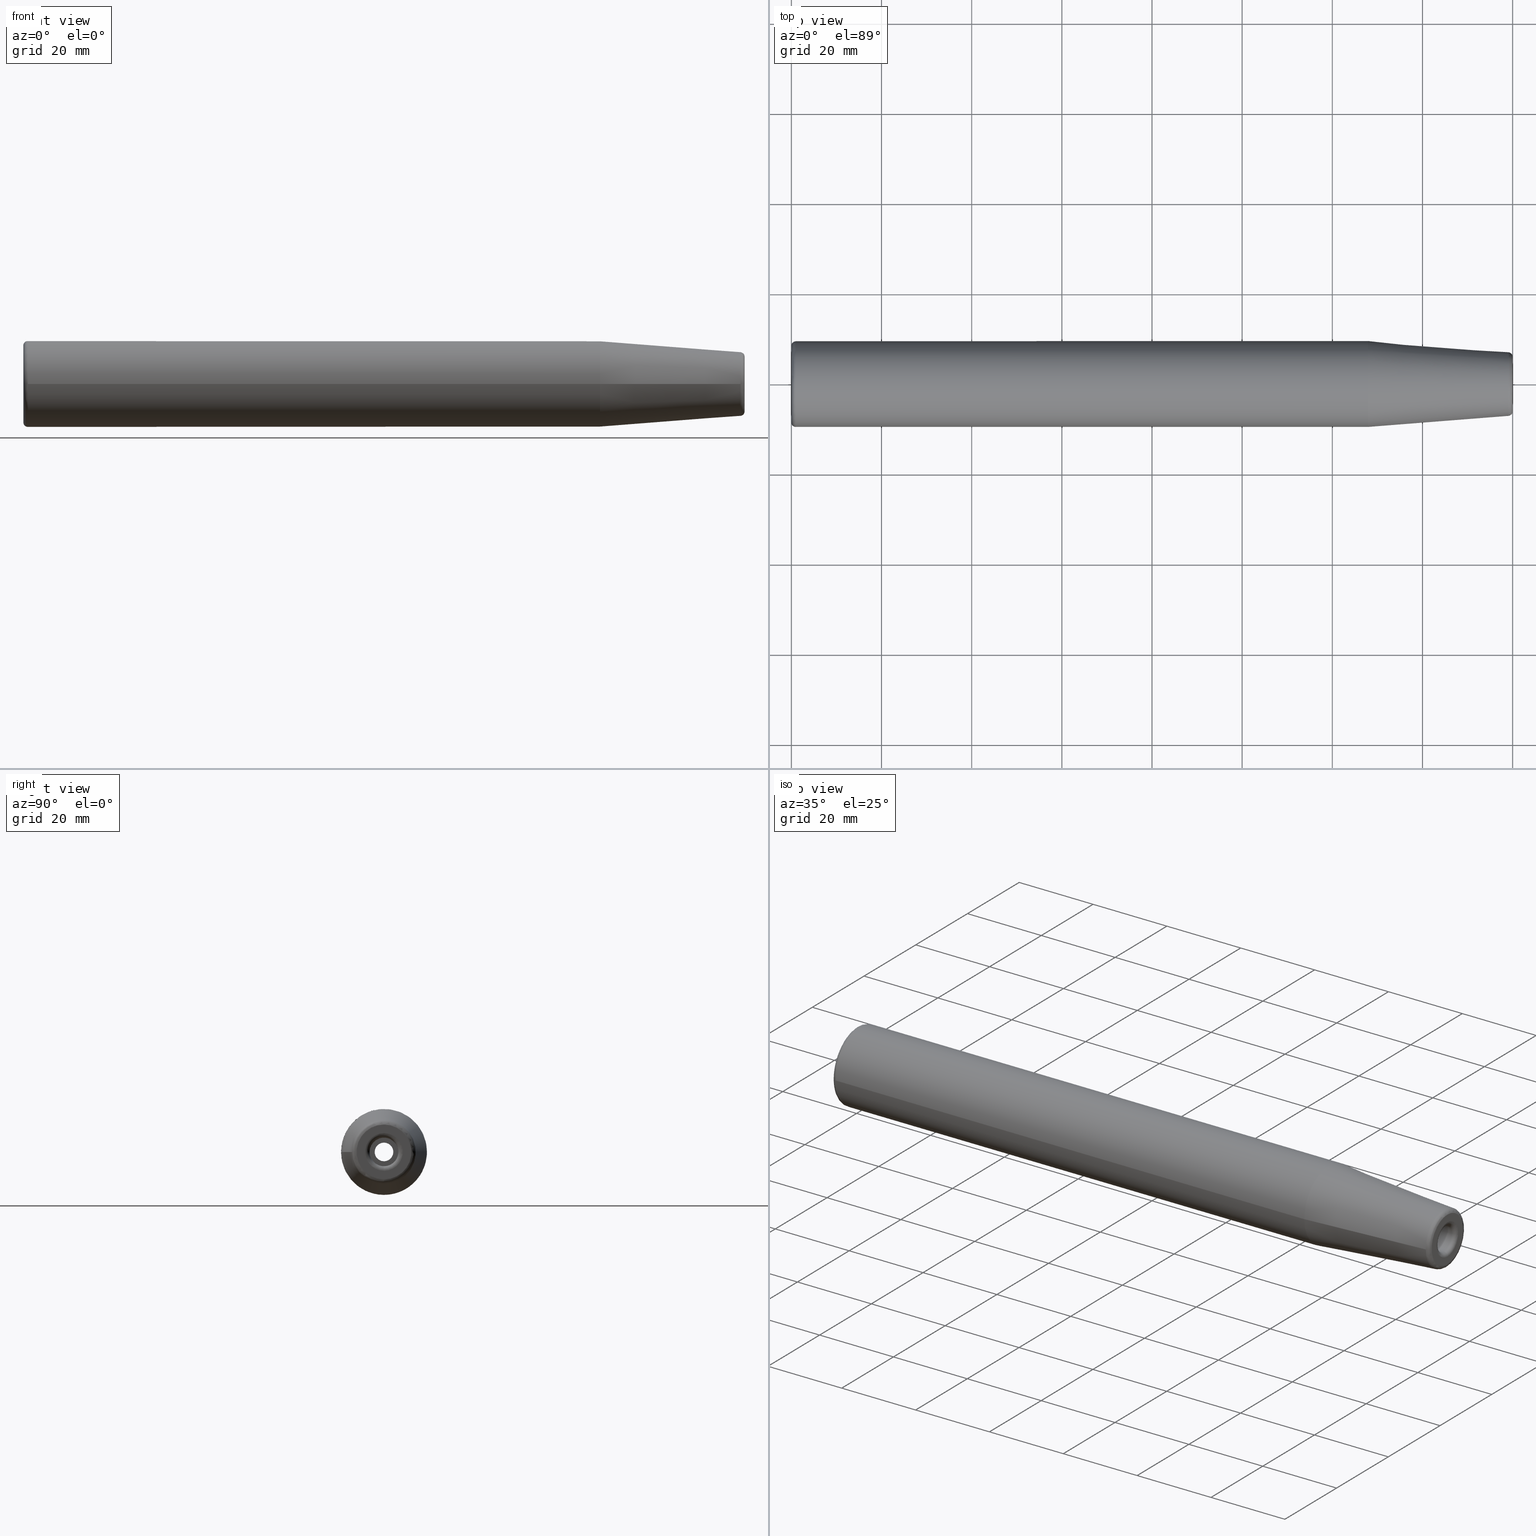
[diagram: canonical four-view strip — front | top / right | iso, engineering-drawing reading convention]
A machine part, canonical four-view strip (front | top / right | iso — engineering-drawing reading convention). The complete STEP part file that produces these views, byte-faithful:
ISO-10303-21;
HEADER;
/* Generated by software containing ST-Developer
 * from STEP Tools, Inc. (www.steptools.com) 
 */

FILE_DESCRIPTION(
/* description */ (''),
/* implementation_level */ '2;1');

FILE_NAME(
/* name */ 'VS032_ST19.05-SFH6.35-160.stp',
/* time_stamp */ '2024-06-20T09:06:53+09:00',
/* author */ ('YSH'),
/* organization */ (''),
/* preprocessor_version */ 'ST-DEVELOPER v20',
/* originating_system */ 'Autodesk Inventor 2024',
/* authorisation */ '');

FILE_SCHEMA (('AUTOMOTIVE_DESIGN { 1 0 10303 214 3 1 1 }'));
ENDSEC;

DATA;
#10=MECHANICAL_DESIGN_GEOMETRIC_PRESENTATION_REPRESENTATION('',(#13),#417);
#11=SHAPE_REPRESENTATION_RELATIONSHIP('SRR','None',#424,#12);
#12=ADVANCED_BREP_SHAPE_REPRESENTATION('',(#14),#416);
#13=STYLED_ITEM('',(#433),#14);
#14=MANIFOLD_SOLID_BREP('\X2\C194B9ACB4DC\X0\1',#216);
#15=CONICAL_SURFACE('',#252,1.75,1.02974425867665);
#16=CONICAL_SURFACE('',#268,8.2625,0.0785398163397452);
#17=LINE('',#368,#24);
#18=LINE('',#373,#25);
#19=LINE('',#380,#26);
#20=LINE('',#384,#27);
#21=LINE('',#395,#28);
#22=LINE('',#405,#29);
#23=LINE('',#411,#30);
#24=VECTOR('',#294,3.175);
#25=VECTOR('',#299,2.067);
#26=VECTOR('',#308,1.75);
#27=VECTOR('',#313,3.5);
#28=VECTOR('',#326,9.52499999999999);
#29=VECTOR('',#341,8.2625);
#30=VECTOR('',#348,3.675);
#31=CYLINDRICAL_SURFACE('',#246,3.175);
#32=CYLINDRICAL_SURFACE('',#248,2.067);
#33=CYLINDRICAL_SURFACE('',#254,3.5);
#34=CYLINDRICAL_SURFACE('',#261,9.52499999999999);
#35=CYLINDRICAL_SURFACE('',#271,3.675);
#36=FACE_BOUND('',#60,.T.);
#37=FACE_BOUND('',#68,.T.);
#38=FACE_BOUND('',#72,.T.);
#39=FACE_BOUND('',#75,.T.);
#40=PLANE('',#244);
#41=PLANE('',#263);
#42=PLANE('',#269);
#43=PLANE('',#273);
#44=FACE_OUTER_BOUND('',#58,.T.);
#45=FACE_OUTER_BOUND('',#59,.T.);
#46=FACE_OUTER_BOUND('',#61,.T.);
#47=FACE_OUTER_BOUND('',#62,.T.);
#48=FACE_OUTER_BOUND('',#63,.T.);
#49=FACE_OUTER_BOUND('',#64,.T.);
#50=FACE_OUTER_BOUND('',#65,.T.);
#51=FACE_OUTER_BOUND('',#66,.T.);
#52=FACE_OUTER_BOUND('',#67,.T.);
#53=FACE_OUTER_BOUND('',#69,.T.);
#54=FACE_OUTER_BOUND('',#70,.T.);
#55=FACE_OUTER_BOUND('',#71,.T.);
#56=FACE_OUTER_BOUND('',#73,.T.);
#57=FACE_OUTER_BOUND('',#74,.T.);
#58=EDGE_LOOP('',(#143,#144,#145,#146,#147));
#59=EDGE_LOOP('',(#148));
#60=EDGE_LOOP('',(#149));
#61=EDGE_LOOP('',(#150,#151,#152,#153,#154));
#62=EDGE_LOOP('',(#155,#156,#157,#158,#159));
#63=EDGE_LOOP('',(#160,#161,#162,#163,#164));
#64=EDGE_LOOP('',(#165,#166,#167,#168));
#65=EDGE_LOOP('',(#169,#170,#171,#172,#173));
#66=EDGE_LOOP('',(#174,#175,#176,#177,#178));
#67=EDGE_LOOP('',(#179));
#68=EDGE_LOOP('',(#180));
#69=EDGE_LOOP('',(#181,#182,#183,#184,#185));
#70=EDGE_LOOP('',(#186,#187,#188,#189,#190));
#71=EDGE_LOOP('',(#191));
#72=EDGE_LOOP('',(#192));
#73=EDGE_LOOP('',(#193,#194,#195,#196));
#74=EDGE_LOOP('',(#197));
#75=EDGE_LOOP('',(#198));
#76=CIRCLE('',#240,4.175);
#77=CIRCLE('',#241,1.);
#78=CIRCLE('',#242,3.175);
#79=CIRCLE('',#243,3.175);
#80=CIRCLE('',#245,6.07560950834179);
#81=CIRCLE('',#247,3.175);
#82=CIRCLE('',#249,2.067);
#83=CIRCLE('',#250,2.067);
#84=CIRCLE('',#251,2.067);
#85=CIRCLE('',#253,3.5);
#86=CIRCLE('',#255,3.5);
#87=CIRCLE('',#257,8.52499999999999);
#88=CIRCLE('',#258,1.);
#89=CIRCLE('',#259,9.52499999999999);
#90=CIRCLE('',#260,9.52499999999999);
#91=CIRCLE('',#262,9.525);
#92=CIRCLE('',#265,7.07252684207492);
#93=CIRCLE('',#266,7.07252684207492);
#94=CIRCLE('',#267,1.);
#95=CIRCLE('',#270,3.67499999999999);
#96=CIRCLE('',#272,3.675);
#97=VERTEX_POINT('',#355);
#98=VERTEX_POINT('',#357);
#99=VERTEX_POINT('',#359);
#100=VERTEX_POINT('',#363);
#101=VERTEX_POINT('',#366);
#102=VERTEX_POINT('',#370);
#103=VERTEX_POINT('',#372);
#104=VERTEX_POINT('',#374);
#105=VERTEX_POINT('',#378);
#106=VERTEX_POINT('',#382);
#107=VERTEX_POINT('',#386);
#108=VERTEX_POINT('',#388);
#109=VERTEX_POINT('',#390);
#110=VERTEX_POINT('',#394);
#111=VERTEX_POINT('',#399);
#112=VERTEX_POINT('',#400);
#113=VERTEX_POINT('',#407);
#114=VERTEX_POINT('',#410);
#115=EDGE_CURVE('',#97,#97,#76,.T.);
#116=EDGE_CURVE('',#97,#98,#77,.T.);
#117=EDGE_CURVE('',#98,#99,#78,.T.);
#118=EDGE_CURVE('',#99,#98,#79,.T.);
#119=EDGE_CURVE('',#100,#100,#80,.T.);
#120=EDGE_CURVE('',#101,#101,#81,.T.);
#121=EDGE_CURVE('',#101,#99,#17,.T.);
#122=EDGE_CURVE('',#102,#102,#82,.T.);
#123=EDGE_CURVE('',#102,#103,#18,.T.);
#124=EDGE_CURVE('',#104,#103,#83,.T.);
#125=EDGE_CURVE('',#103,#104,#84,.T.);
#126=EDGE_CURVE('',#105,#105,#85,.T.);
#127=EDGE_CURVE('',#105,#104,#19,.T.);
#128=EDGE_CURVE('',#106,#106,#86,.T.);
#129=EDGE_CURVE('',#106,#105,#20,.T.);
#130=EDGE_CURVE('',#107,#107,#87,.T.);
#131=EDGE_CURVE('',#107,#108,#88,.T.);
#132=EDGE_CURVE('',#108,#109,#89,.T.);
#133=EDGE_CURVE('',#109,#108,#90,.T.);
#134=EDGE_CURVE('',#109,#110,#21,.T.);
#135=EDGE_CURVE('',#110,#110,#91,.T.);
#136=EDGE_CURVE('',#111,#112,#92,.T.);
#137=EDGE_CURVE('',#112,#111,#93,.T.);
#138=EDGE_CURVE('',#111,#100,#94,.T.);
#139=EDGE_CURVE('',#110,#112,#22,.T.);
#140=EDGE_CURVE('',#113,#113,#95,.T.);
#141=EDGE_CURVE('',#113,#114,#23,.T.);
#142=EDGE_CURVE('',#114,#114,#96,.T.);
#143=ORIENTED_EDGE('',*,*,#115,.T.);
#144=ORIENTED_EDGE('',*,*,#116,.T.);
#145=ORIENTED_EDGE('',*,*,#117,.T.);
#146=ORIENTED_EDGE('',*,*,#118,.T.);
#147=ORIENTED_EDGE('',*,*,#116,.F.);
#148=ORIENTED_EDGE('',*,*,#119,.F.);
#149=ORIENTED_EDGE('',*,*,#115,.F.);
#150=ORIENTED_EDGE('',*,*,#120,.T.);
#151=ORIENTED_EDGE('',*,*,#121,.T.);
#152=ORIENTED_EDGE('',*,*,#117,.F.);
#153=ORIENTED_EDGE('',*,*,#118,.F.);
#154=ORIENTED_EDGE('',*,*,#121,.F.);
#155=ORIENTED_EDGE('',*,*,#122,.F.);
#156=ORIENTED_EDGE('',*,*,#123,.T.);
#157=ORIENTED_EDGE('',*,*,#124,.F.);
#158=ORIENTED_EDGE('',*,*,#125,.F.);
#159=ORIENTED_EDGE('',*,*,#123,.F.);
#160=ORIENTED_EDGE('',*,*,#126,.T.);
#161=ORIENTED_EDGE('',*,*,#127,.T.);
#162=ORIENTED_EDGE('',*,*,#124,.T.);
#163=ORIENTED_EDGE('',*,*,#125,.T.);
#164=ORIENTED_EDGE('',*,*,#127,.F.);
#165=ORIENTED_EDGE('',*,*,#128,.F.);
#166=ORIENTED_EDGE('',*,*,#129,.T.);
#167=ORIENTED_EDGE('',*,*,#126,.F.);
#168=ORIENTED_EDGE('',*,*,#129,.F.);
#169=ORIENTED_EDGE('',*,*,#130,.T.);
#170=ORIENTED_EDGE('',*,*,#131,.T.);
#171=ORIENTED_EDGE('',*,*,#132,.T.);
#172=ORIENTED_EDGE('',*,*,#133,.T.);
#173=ORIENTED_EDGE('',*,*,#131,.F.);
#174=ORIENTED_EDGE('',*,*,#133,.F.);
#175=ORIENTED_EDGE('',*,*,#134,.T.);
#176=ORIENTED_EDGE('',*,*,#135,.T.);
#177=ORIENTED_EDGE('',*,*,#134,.F.);
#178=ORIENTED_EDGE('',*,*,#132,.F.);
#179=ORIENTED_EDGE('',*,*,#130,.F.);
#180=ORIENTED_EDGE('',*,*,#128,.T.);
#181=ORIENTED_EDGE('',*,*,#136,.T.);
#182=ORIENTED_EDGE('',*,*,#137,.T.);
#183=ORIENTED_EDGE('',*,*,#138,.T.);
#184=ORIENTED_EDGE('',*,*,#119,.T.);
#185=ORIENTED_EDGE('',*,*,#138,.F.);
#186=ORIENTED_EDGE('',*,*,#135,.F.);
#187=ORIENTED_EDGE('',*,*,#139,.T.);
#188=ORIENTED_EDGE('',*,*,#136,.F.);
#189=ORIENTED_EDGE('',*,*,#137,.F.);
#190=ORIENTED_EDGE('',*,*,#139,.F.);
#191=ORIENTED_EDGE('',*,*,#140,.F.);
#192=ORIENTED_EDGE('',*,*,#122,.T.);
#193=ORIENTED_EDGE('',*,*,#140,.T.);
#194=ORIENTED_EDGE('',*,*,#141,.T.);
#195=ORIENTED_EDGE('',*,*,#142,.F.);
#196=ORIENTED_EDGE('',*,*,#141,.F.);
#197=ORIENTED_EDGE('',*,*,#142,.T.);
#198=ORIENTED_EDGE('',*,*,#120,.F.);
#199=TOROIDAL_SURFACE('',#239,4.175,1.);
#200=TOROIDAL_SURFACE('',#256,8.52499999999999,1.);
#201=TOROIDAL_SURFACE('',#264,6.07560950834179,1.);
#202=ADVANCED_FACE('',(#44),#199,.T.);
#203=ADVANCED_FACE('',(#45,#36),#40,.T.);
#204=ADVANCED_FACE('',(#46),#31,.F.);
#205=ADVANCED_FACE('',(#47),#32,.F.);
#206=ADVANCED_FACE('',(#48),#15,.F.);
#207=ADVANCED_FACE('',(#49),#33,.F.);
#208=ADVANCED_FACE('',(#50),#200,.T.);
#209=ADVANCED_FACE('',(#51),#34,.T.);
#210=ADVANCED_FACE('',(#52,#37),#41,.T.);
#211=ADVANCED_FACE('',(#53),#201,.T.);
#212=ADVANCED_FACE('',(#54),#16,.T.);
#213=ADVANCED_FACE('',(#55,#38),#42,.T.);
#214=ADVANCED_FACE('',(#56),#35,.F.);
#215=ADVANCED_FACE('',(#57,#39),#43,.T.);
#216=CLOSED_SHELL('',(#202,#203,#204,#205,#206,#207,#208,#209,#210,#211,
#212,#213,#214,#215));
#217=DERIVED_UNIT_ELEMENT(#220,1.);
#218=DERIVED_UNIT_ELEMENT(#419,-3.);
#219=DIMENSIONAL_EXPONENTS(0.,1.,0.,0.,0.,0.,0.);
#220=(
CONVERSION_BASED_UNIT('gram',#222)
MASS_UNIT()
NAMED_UNIT(#219)
);
#221=(
MASS_UNIT()
NAMED_UNIT(*)
SI_UNIT(.KILO.,.GRAM.)
);
#222=MASS_MEASURE_WITH_UNIT(MASS_MEASURE(0.001),#221);
#223=DERIVED_UNIT((#217,#218));
#224=MEASURE_REPRESENTATION_ITEM('density measure',
POSITIVE_RATIO_MEASURE(1.),#223);
#225=PROPERTY_DEFINITION_REPRESENTATION(#230,#227);
#226=PROPERTY_DEFINITION_REPRESENTATION(#231,#228);
#227=REPRESENTATION('material name',(#229),#416);
#228=REPRESENTATION('density',(#224),#416);
#229=DESCRIPTIVE_REPRESENTATION_ITEM('\X2\C77CBC18\X0\','\X2\C77CBC18\X0\');
#230=PROPERTY_DEFINITION('material property','material name',#426);
#231=PROPERTY_DEFINITION('material property','density of part',#426);
#232=DATE_TIME_ROLE('creation_date');
#233=APPLIED_DATE_AND_TIME_ASSIGNMENT(#234,#232,(#426));
#234=DATE_AND_TIME(#235,#236);
#235=CALENDAR_DATE(2024,15,1);
#236=LOCAL_TIME(0,0,0.,#237);
#237=COORDINATED_UNIVERSAL_TIME_OFFSET(0,0,.BEHIND.);
#238=AXIS2_PLACEMENT_3D('',#353,#274,#275);
#239=AXIS2_PLACEMENT_3D('',#354,#276,#277);
#240=AXIS2_PLACEMENT_3D('',#356,#278,#279);
#241=AXIS2_PLACEMENT_3D('',#358,#280,#281);
#242=AXIS2_PLACEMENT_3D('',#360,#282,#283);
#243=AXIS2_PLACEMENT_3D('',#361,#284,#285);
#244=AXIS2_PLACEMENT_3D('',#362,#286,#287);
#245=AXIS2_PLACEMENT_3D('',#364,#288,#289);
#246=AXIS2_PLACEMENT_3D('',#365,#290,#291);
#247=AXIS2_PLACEMENT_3D('',#367,#292,#293);
#248=AXIS2_PLACEMENT_3D('',#369,#295,#296);
#249=AXIS2_PLACEMENT_3D('',#371,#297,#298);
#250=AXIS2_PLACEMENT_3D('',#375,#300,#301);
#251=AXIS2_PLACEMENT_3D('',#376,#302,#303);
#252=AXIS2_PLACEMENT_3D('',#377,#304,#305);
#253=AXIS2_PLACEMENT_3D('',#379,#306,#307);
#254=AXIS2_PLACEMENT_3D('',#381,#309,#310);
#255=AXIS2_PLACEMENT_3D('',#383,#311,#312);
#256=AXIS2_PLACEMENT_3D('',#385,#314,#315);
#257=AXIS2_PLACEMENT_3D('',#387,#316,#317);
#258=AXIS2_PLACEMENT_3D('',#389,#318,#319);
#259=AXIS2_PLACEMENT_3D('',#391,#320,#321);
#260=AXIS2_PLACEMENT_3D('',#392,#322,#323);
#261=AXIS2_PLACEMENT_3D('',#393,#324,#325);
#262=AXIS2_PLACEMENT_3D('',#396,#327,#328);
#263=AXIS2_PLACEMENT_3D('',#397,#329,#330);
#264=AXIS2_PLACEMENT_3D('',#398,#331,#332);
#265=AXIS2_PLACEMENT_3D('',#401,#333,#334);
#266=AXIS2_PLACEMENT_3D('',#402,#335,#336);
#267=AXIS2_PLACEMENT_3D('',#403,#337,#338);
#268=AXIS2_PLACEMENT_3D('',#404,#339,#340);
#269=AXIS2_PLACEMENT_3D('',#406,#342,#343);
#270=AXIS2_PLACEMENT_3D('',#408,#344,#345);
#271=AXIS2_PLACEMENT_3D('',#409,#346,#347);
#272=AXIS2_PLACEMENT_3D('',#412,#349,#350);
#273=AXIS2_PLACEMENT_3D('',#413,#351,#352);
#274=DIRECTION('axis',(0.,0.,1.));
#275=DIRECTION('refdir',(1.,0.,0.));
#276=DIRECTION('center_axis',(-1.,0.,0.));
#277=DIRECTION('ref_axis',(0.,0.,1.));
#278=DIRECTION('center_axis',(1.,0.,0.));
#279=DIRECTION('ref_axis',(0.,-1.,-1.83697019872103E-16));
#280=DIRECTION('center_axis',(0.,-1.,1.22464679914735E-16));
#281=DIRECTION('ref_axis',(0.,-1.22464679914735E-16,-1.));
#282=DIRECTION('center_axis',(-1.,0.,0.));
#283=DIRECTION('ref_axis',(0.,-1.,-1.83697019872103E-16));
#284=DIRECTION('center_axis',(-1.,0.,0.));
#285=DIRECTION('ref_axis',(0.,-1.,-1.83697019872103E-16));
#286=DIRECTION('center_axis',(1.,0.,0.));
#287=DIRECTION('ref_axis',(0.,0.,-1.));
#288=DIRECTION('center_axis',(-1.,0.,0.));
#289=DIRECTION('ref_axis',(0.,-1.,-1.83697019872103E-16));
#290=DIRECTION('center_axis',(-1.,0.,0.));
#291=DIRECTION('ref_axis',(0.,1.,0.));
#292=DIRECTION('center_axis',(-1.,0.,0.));
#293=DIRECTION('ref_axis',(0.,0.,1.));
#294=DIRECTION('',(1.,0.,0.));
#295=DIRECTION('center_axis',(1.,0.,0.));
#296=DIRECTION('ref_axis',(0.,0.,-1.));
#297=DIRECTION('center_axis',(-1.,0.,0.));
#298=DIRECTION('ref_axis',(0.,0.,-1.));
#299=DIRECTION('',(-1.,0.,0.));
#300=DIRECTION('center_axis',(1.,0.,0.));
#301=DIRECTION('ref_axis',(0.,0.,-1.));
#302=DIRECTION('center_axis',(1.,0.,0.));
#303=DIRECTION('ref_axis',(0.,0.,-1.));
#304=DIRECTION('center_axis',(-1.,0.,0.));
#305=DIRECTION('ref_axis',(0.,0.,1.));
#306=DIRECTION('center_axis',(-1.,0.,0.));
#307=DIRECTION('ref_axis',(0.,0.,1.));
#308=DIRECTION('',(0.515038074910054,1.04972719113862E-16,0.857167300702112));
#309=DIRECTION('center_axis',(-1.,0.,0.));
#310=DIRECTION('ref_axis',(0.,0.,1.));
#311=DIRECTION('center_axis',(1.,0.,0.));
#312=DIRECTION('ref_axis',(0.,0.,1.));
#313=DIRECTION('',(1.,0.,0.));
#314=DIRECTION('center_axis',(-1.,0.,0.));
#315=DIRECTION('ref_axis',(0.,0.,1.));
#316=DIRECTION('center_axis',(1.,0.,0.));
#317=DIRECTION('ref_axis',(0.,-1.,-1.83697019872103E-16));
#318=DIRECTION('center_axis',(0.,-1.,1.22464679914735E-16));
#319=DIRECTION('ref_axis',(0.,-1.22464679914735E-16,-1.));
#320=DIRECTION('center_axis',(-1.,0.,0.));
#321=DIRECTION('ref_axis',(0.,-1.,-1.83697019872103E-16));
#322=DIRECTION('center_axis',(-1.,0.,0.));
#323=DIRECTION('ref_axis',(0.,-1.,-1.83697019872103E-16));
#324=DIRECTION('center_axis',(-1.,0.,0.));
#325=DIRECTION('ref_axis',(0.,1.,0.));
#326=DIRECTION('',(1.,0.,0.));
#327=DIRECTION('center_axis',(-1.,0.,0.));
#328=DIRECTION('ref_axis',(0.,0.,1.));
#329=DIRECTION('center_axis',(-1.,0.,0.));
#330=DIRECTION('ref_axis',(0.,0.,1.));
#331=DIRECTION('center_axis',(-1.,0.,0.));
#332=DIRECTION('ref_axis',(0.,0.,1.));
#333=DIRECTION('center_axis',(1.,0.,0.));
#334=DIRECTION('ref_axis',(0.,-1.,-3.06161699786838E-17));
#335=DIRECTION('center_axis',(1.,0.,0.));
#336=DIRECTION('ref_axis',(0.,-1.,-3.06161699786838E-17));
#337=DIRECTION('center_axis',(0.,-1.,1.22464679914735E-16));
#338=DIRECTION('ref_axis',(0.,-1.22464679914735E-16,-1.));
#339=DIRECTION('center_axis',(-1.,0.,0.));
#340=DIRECTION('ref_axis',(0.,1.,0.));
#341=DIRECTION('',(0.996917333733128,0.0784590957278453,-9.60846804471015E-18));
#342=DIRECTION('center_axis',(1.,0.,0.));
#343=DIRECTION('ref_axis',(0.,0.,-1.));
#344=DIRECTION('center_axis',(-1.,0.,0.));
#345=DIRECTION('ref_axis',(0.,0.,1.));
#346=DIRECTION('center_axis',(-1.,0.,0.));
#347=DIRECTION('ref_axis',(0.,1.,0.));
#348=DIRECTION('',(1.,0.,0.));
#349=DIRECTION('center_axis',(-1.,0.,0.));
#350=DIRECTION('ref_axis',(0.,0.,1.));
#351=DIRECTION('center_axis',(-1.,0.,0.));
#352=DIRECTION('ref_axis',(0.,0.,1.));
#353=CARTESIAN_POINT('',(0.,0.,0.));
#354=CARTESIAN_POINT('Origin',(-1.,0.,0.));
#355=CARTESIAN_POINT('',(0.,-5.1129003864402E-16,-4.175));
#356=CARTESIAN_POINT('Origin',(0.,0.,0.));
#357=CARTESIAN_POINT('',(-1.,-3.88825358729285E-16,-3.175));
#358=CARTESIAN_POINT('Origin',(-1.,-5.1129003864402E-16,-4.175));
#359=CARTESIAN_POINT('',(-1.,-3.175,3.88825358729285E-16));
#360=CARTESIAN_POINT('Origin',(-1.,0.,0.));
#361=CARTESIAN_POINT('Origin',(-1.,0.,0.));
#362=CARTESIAN_POINT('Origin',(0.,7.,0.));
#363=CARTESIAN_POINT('',(0.,-7.44047573726E-16,-6.07560950834179));
#364=CARTESIAN_POINT('Origin',(0.,0.,0.));
#365=CARTESIAN_POINT('Origin',(-13.0000000000001,0.,0.));
#366=CARTESIAN_POINT('',(-26.0000000000001,-3.175,3.88825358729285E-16));
#367=CARTESIAN_POINT('Origin',(-26.0000000000001,0.,0.));
#368=CARTESIAN_POINT('',(-13.0000000000001,-3.175,3.88825358729285E-16));
#369=CARTESIAN_POINT('Origin',(-162.252288119459,0.,0.));
#370=CARTESIAN_POINT('',(-36.0000000000001,2.53134493383758E-16,2.067));
#371=CARTESIAN_POINT('Origin',(-36.0000000000001,0.,0.));
#372=CARTESIAN_POINT('',(-51.1389667329335,-2.53134493383758E-16,2.067));
#373=CARTESIAN_POINT('',(-162.252288119459,-2.53134493383758E-16,2.067));
#374=CARTESIAN_POINT('',(-51.1389667329335,-2.53134493383758E-16,-2.067));
#375=CARTESIAN_POINT('Origin',(-51.1389667329335,0.,0.));
#376=CARTESIAN_POINT('Origin',(-51.1389667329335,0.,0.));
#377=CARTESIAN_POINT('Origin',(-50.9484939167018,0.,0.));
#378=CARTESIAN_POINT('',(-52.,-4.28626379701574E-16,-3.5));
#379=CARTESIAN_POINT('Origin',(-52.,0.,0.));
#380=CARTESIAN_POINT('',(-50.9484939167018,-2.14313189850787E-16,-1.75));
#381=CARTESIAN_POINT('Origin',(-106.,0.,0.));
#382=CARTESIAN_POINT('',(-160.,-4.28626379701574E-16,-3.5));
#383=CARTESIAN_POINT('Origin',(-160.,0.,0.));
#384=CARTESIAN_POINT('',(-106.,-4.28626379701574E-16,-3.5));
#385=CARTESIAN_POINT('Origin',(-159.,0.,0.));
#386=CARTESIAN_POINT('',(-160.,-1.04401139627312E-15,-8.52499999999999));
#387=CARTESIAN_POINT('Origin',(-160.,0.,0.));
#388=CARTESIAN_POINT('',(-159.,-1.16647607618785E-15,-9.52499999999999));
#389=CARTESIAN_POINT('Origin',(-159.,-1.04401139627312E-15,-8.52499999999999));
#390=CARTESIAN_POINT('',(-159.,-9.52499999999999,1.16647607618785E-15));
#391=CARTESIAN_POINT('Origin',(-159.,0.,0.));
#392=CARTESIAN_POINT('Origin',(-159.,0.,0.));
#393=CARTESIAN_POINT('Origin',(-96.0415834794205,0.,0.));
#394=CARTESIAN_POINT('',(-32.083166958841,-9.52499999999999,1.16647607618785E-15));
#395=CARTESIAN_POINT('',(-96.0415834794205,-9.52499999999999,1.16647607618785E-15));
#396=CARTESIAN_POINT('Origin',(-32.083166958841,0.,0.));
#397=CARTESIAN_POINT('Origin',(-160.,0.,0.));
#398=CARTESIAN_POINT('Origin',(-1.,0.,0.));
#399=CARTESIAN_POINT('',(-0.921540904272156,-8.66134735903079E-16,-7.07252684207492));
#400=CARTESIAN_POINT('',(-0.921540904272156,-7.07252684207492,8.66134735903079E-16));
#401=CARTESIAN_POINT('Origin',(-0.921540904272156,0.,1.08266841987885E-15));
#402=CARTESIAN_POINT('Origin',(-0.921540904272156,0.,1.08266841987885E-15));
#403=CARTESIAN_POINT('Origin',(-1.,-7.44047573726E-16,-6.07560950834179));
#404=CARTESIAN_POINT('Origin',(-16.0415834794205,0.,0.));
#405=CARTESIAN_POINT('',(-16.0415834794205,-8.2625,1.0118644177955E-15));
#406=CARTESIAN_POINT('Origin',(-36.0000000000001,3.67499999999999,0.));
#407=CARTESIAN_POINT('',(-36.0000000000001,-3.675,4.50057698686652E-16));
#408=CARTESIAN_POINT('Origin',(-36.0000000000001,0.,0.));
#409=CARTESIAN_POINT('Origin',(-31.0000000000001,0.,0.));
#410=CARTESIAN_POINT('',(-26.0000000000001,-3.675,4.50057698686652E-16));
#411=CARTESIAN_POINT('',(-31.0000000000001,-3.675,4.50057698686652E-16));
#412=CARTESIAN_POINT('Origin',(-26.0000000000001,0.,0.));
#413=CARTESIAN_POINT('Origin',(-26.0000000000001,3.175,0.));
#414=UNCERTAINTY_MEASURE_WITH_UNIT(LENGTH_MEASURE(0.01),#418,
'DISTANCE_ACCURACY_VALUE',
'Maximum model space distance between geometric entities at asserted c
onnectivities');
#415=UNCERTAINTY_MEASURE_WITH_UNIT(LENGTH_MEASURE(0.01),#418,
'DISTANCE_ACCURACY_VALUE',
'Maximum model space distance between geometric entities at asserted c
onnectivities');
#416=(
GEOMETRIC_REPRESENTATION_CONTEXT(3)
GLOBAL_UNCERTAINTY_ASSIGNED_CONTEXT((#414))
GLOBAL_UNIT_ASSIGNED_CONTEXT((#418,#420,#421))
REPRESENTATION_CONTEXT('','3D')
);
#417=(
GEOMETRIC_REPRESENTATION_CONTEXT(3)
GLOBAL_UNCERTAINTY_ASSIGNED_CONTEXT((#415))
GLOBAL_UNIT_ASSIGNED_CONTEXT((#418,#420,#421))
REPRESENTATION_CONTEXT('','3D')
);
#418=(
LENGTH_UNIT()
NAMED_UNIT(*)
SI_UNIT(.MILLI.,.METRE.)
);
#419=(
LENGTH_UNIT()
NAMED_UNIT(*)
SI_UNIT(.CENTI.,.METRE.)
);
#420=(
NAMED_UNIT(*)
PLANE_ANGLE_UNIT()
SI_UNIT($,.RADIAN.)
);
#421=(
NAMED_UNIT(*)
SI_UNIT($,.STERADIAN.)
SOLID_ANGLE_UNIT()
);
#422=SHAPE_DEFINITION_REPRESENTATION(#423,#424);
#423=PRODUCT_DEFINITION_SHAPE('',$,#426);
#424=SHAPE_REPRESENTATION('',(#238),#416);
#425=PRODUCT_DEFINITION_CONTEXT('part definition',#430,'design');
#426=PRODUCT_DEFINITION('LO-ST19.05-SFH6.35-160',
'LO-ST19.05-SFH6.35-160',#427,#425);
#427=PRODUCT_DEFINITION_FORMATION('',$,#432);
#428=PRODUCT_RELATED_PRODUCT_CATEGORY('LO-ST19.05-SFH6.35-160',
'LO-ST19.05-SFH6.35-160',(#432));
#429=APPLICATION_PROTOCOL_DEFINITION('international standard',
'automotive_design',2009,#430);
#430=APPLICATION_CONTEXT(
'Core Data for Automotive Mechanical Design Process');
#431=PRODUCT_CONTEXT('part definition',#430,'mechanical');
#432=PRODUCT('LO-ST19.05-SFH6.35-160','LO-ST19.05-SFH6.35-160',$,(#431));
#433=PRESENTATION_STYLE_ASSIGNMENT((#434));
#434=SURFACE_STYLE_USAGE(.BOTH.,#437);
#435=SURFACE_STYLE_RENDERING_WITH_PROPERTIES($,#441,(#436));
#436=SURFACE_STYLE_TRANSPARENT(0.);
#437=SURFACE_SIDE_STYLE('',(#438,#435));
#438=SURFACE_STYLE_FILL_AREA(#439);
#439=FILL_AREA_STYLE('',(#440));
#440=FILL_AREA_STYLE_COLOUR('',#441);
#441=COLOUR_RGB('',0.749019607843137,0.749019607843137,0.749019607843137);
ENDSEC;
END-ISO-10303-21;
